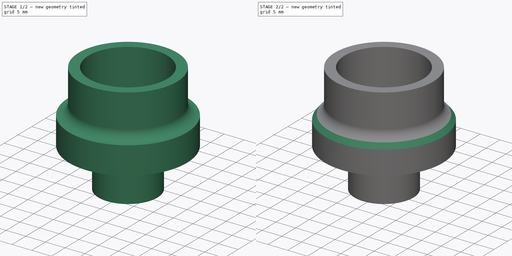
[diagram: build sequence overview — one tinted view per stage of 2, left to right]
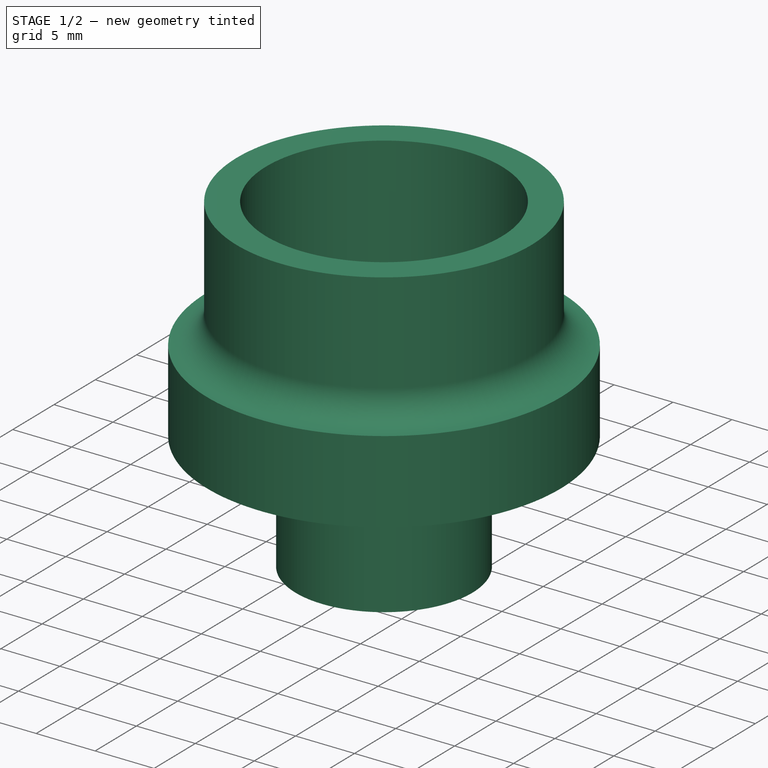
[diagram: stage 1 of 2 — iso view after this stage's code; geometry added in this stage tinted green]
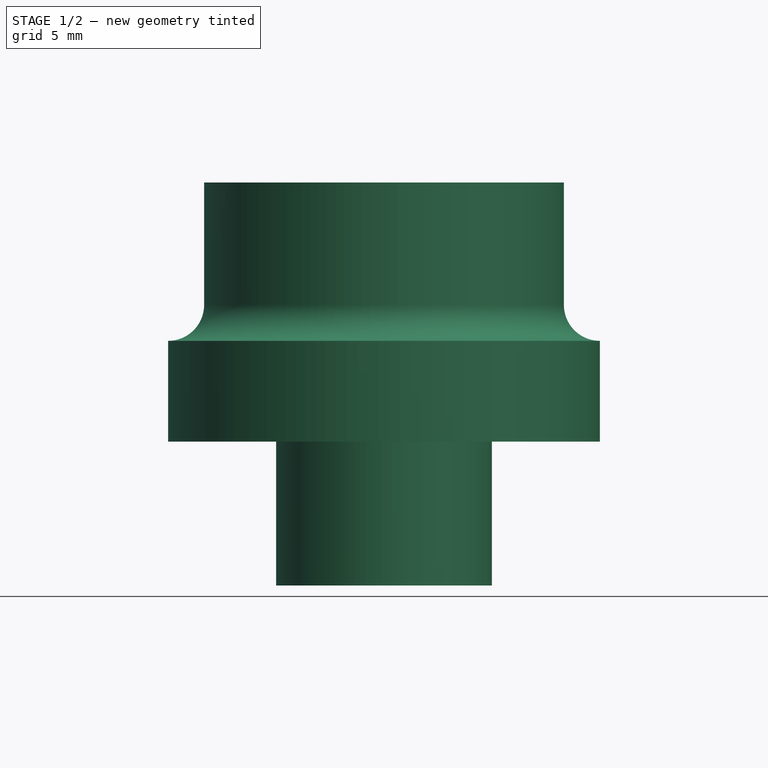
[diagram: stage 1 of 2 — front view after this stage's code; geometry added in this stage tinted green]
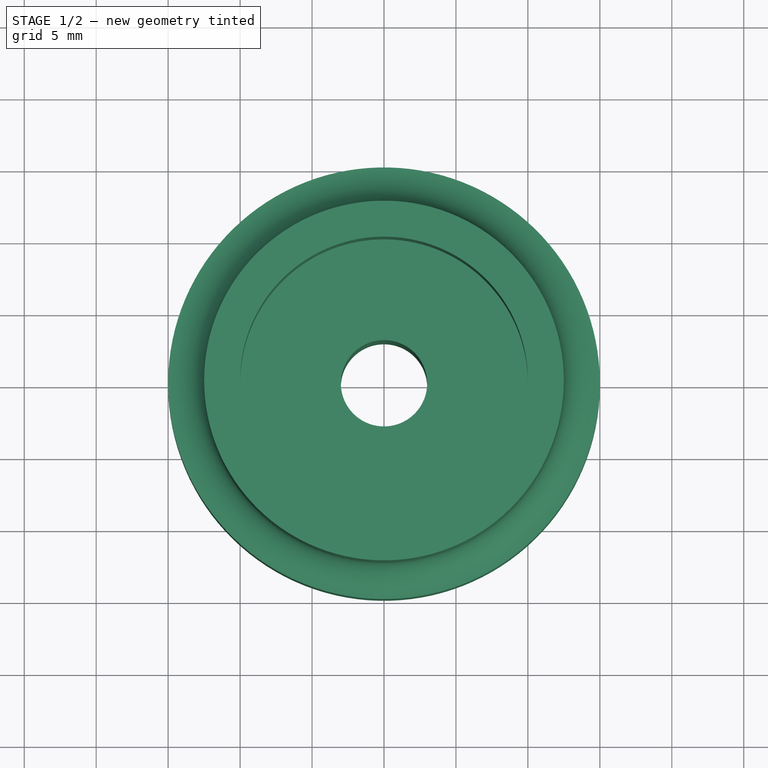
[diagram: stage 1 of 2 — top view after this stage's code; geometry added in this stage tinted green]
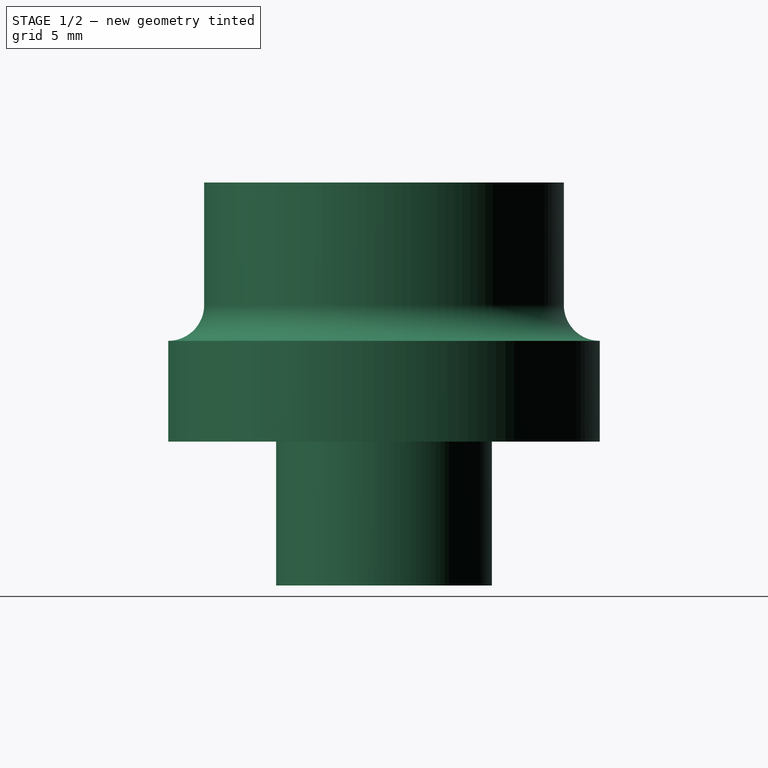
[diagram: stage 1 of 2 — right view after this stage's code; geometry added in this stage tinted green]
FCSTD DOCUMENT  (FreeCAD 1.0R39319 (Git))
Label: Entretoise
License: All rights reserved
LicenseURL: https://en.wikipedia.org/wiki/All_rights_reserved
objects: Sketcher::SketchObject×1, PartDesign::Revolution×1, PartDesign::Chamfer×1, PartDesign::Body×1
note: 9 computed .brp shape members not serialized (recipe doc carries the construction recipe); baked Part::Feature solids carry a one-line shape summary decoded from their .brp

FEATURE [Sketcher::SketchObject] Sketch
  ArcFitTolerance = 1e-06
  AttachmentSupport = -> [XZ_Plane]
  FullyConstrained = true
  MakeInternals = false
  MapMode = 5
  Placement = pos=(0,0,0) rot=(1,0,0;1.5708rad)
  sketch-geometry (10):
    g0: LineSegment StartX=3 StartY=0 StartZ=0 EndX=3 EndY=17 EndZ=0
    g1: LineSegment StartX=3 StartY=17 StartZ=0 EndX=10 EndY=17 EndZ=0
    g2: LineSegment StartX=3 StartY=0 StartZ=0 EndX=7.5 EndY=0 EndZ=0
    g3: LineSegment StartX=7.5 StartY=0 StartZ=0 EndX=7.5 EndY=10 EndZ=0
    g4: LineSegment StartX=7.5 StartY=10 StartZ=0 EndX=15 EndY=10 EndZ=0
    g5: LineSegment StartX=15 StartY=10 StartZ=0 EndX=15 EndY=17 EndZ=0
    g6: LineSegment StartX=10 StartY=17 StartZ=0 EndX=10 EndY=28 EndZ=0
    g7: LineSegment StartX=10 StartY=28 StartZ=0 EndX=12.5 EndY=28 EndZ=0
    g8: ArcOfCircle CenterX=15 CenterY=19.5 CenterZ=0 NormalX=0 NormalY=0 NormalZ=1 AngleXU=0 Radius=2.5 StartAngle=3.14159 EndAngle=4.71239
    g9: LineSegment StartX=12.5 StartY=28 StartZ=0 EndX=12.5 EndY=19.5 EndZ=0
  constraints (30):
    c: PointOnObject(g0,g-1)
    c: Vertical(g0)
    c: Coincident(g1,g0)
    c: Horizontal(g1)
    c: Coincident(g2,g0)
    c: PointOnObject(g2,g-1)
    c: Distance(g0,g-2) = 3
    c: DistanceY(g0,g0) = 17
    c: Distance(g1,g-2) = 10
    c: Distance(g2,g-2) = 7.5
    c: Coincident(g3,g2)
    c: Vertical(g3)
    c: DistanceY(g3,g3) = 10
    c: Coincident(g4,g3)
    c: Horizontal(g4)
    c: DistanceX(g-1,g4) = 15
    c: Coincident(g5,g4)
    c: Vertical(g5)
    c: DistanceY(g5,g5) = 7
    c: Coincident(g6,g1)
    c: Vertical(g6)
    c: DistanceY(g6,g6) = 11
    c: Coincident(g7,g6)
    c: Horizontal(g7)
    c: Distance(g7,g-2) = 12.5
    c: Coincident(g8,g5)
    c: Perpendicular(g8,g5)
    c: Coincident(g9,g7)
    c: Tangent(g9,g8) = -1.5708
    c: Perpendicular(g7,g9)
FEATURE [PartDesign::Revolution] Revolution
  Angle = 360
  Angle2 = 60
  Axis = (1e-16,1e-16,1)
  Base = (0,0,0)
  Placement = pos=(0,0,0) rot=(1,0,0;1.5708rad)
  Profile = -> Sketch
  ReferenceAxis = -> Z_Axis
  Refine = true
  Reversed = true
  Suppressed = false
  Type = 0
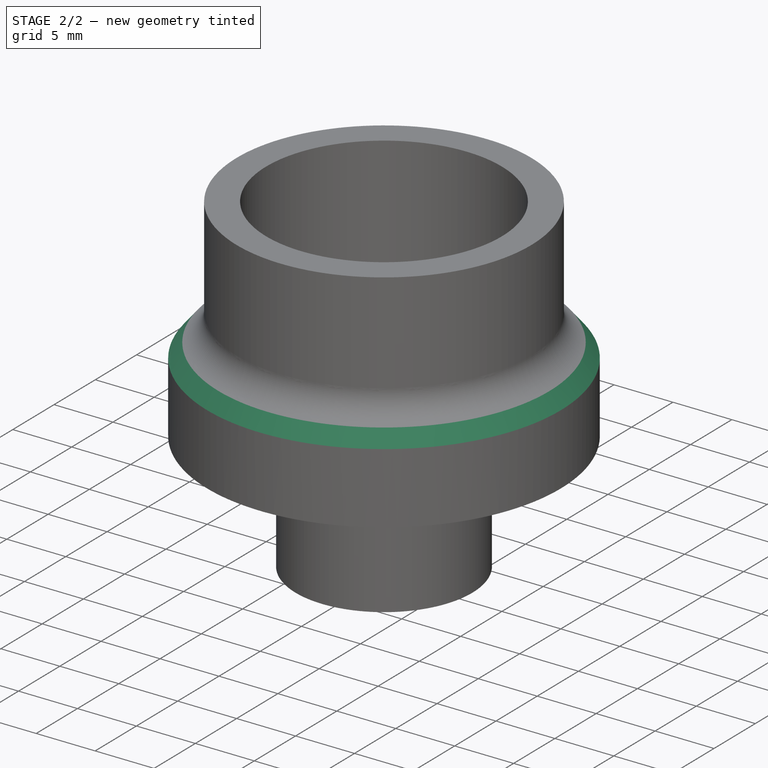
[diagram: stage 2 of 2 — iso view after this stage's code; geometry added in this stage tinted green]
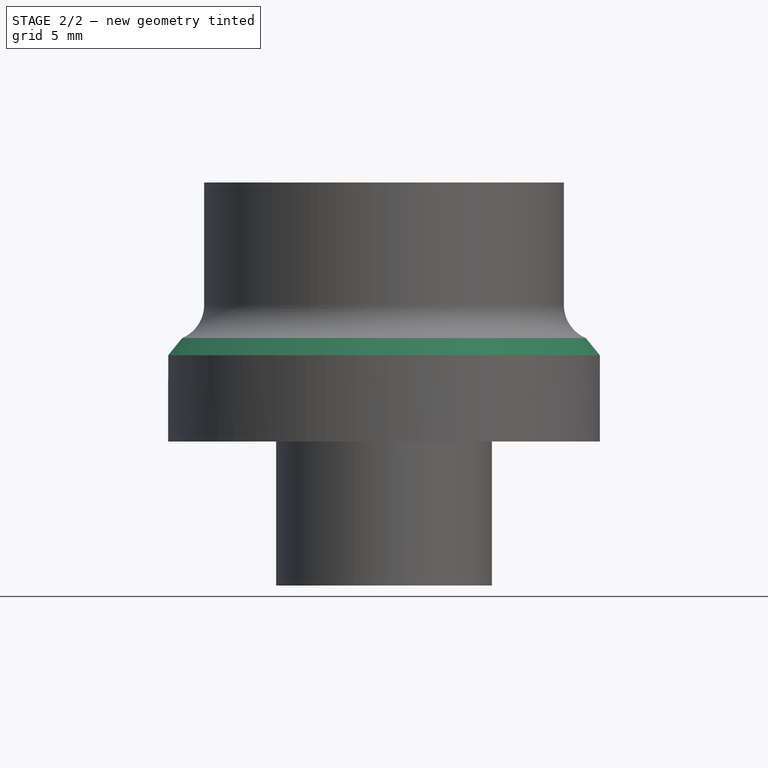
[diagram: stage 2 of 2 — front view after this stage's code; geometry added in this stage tinted green]
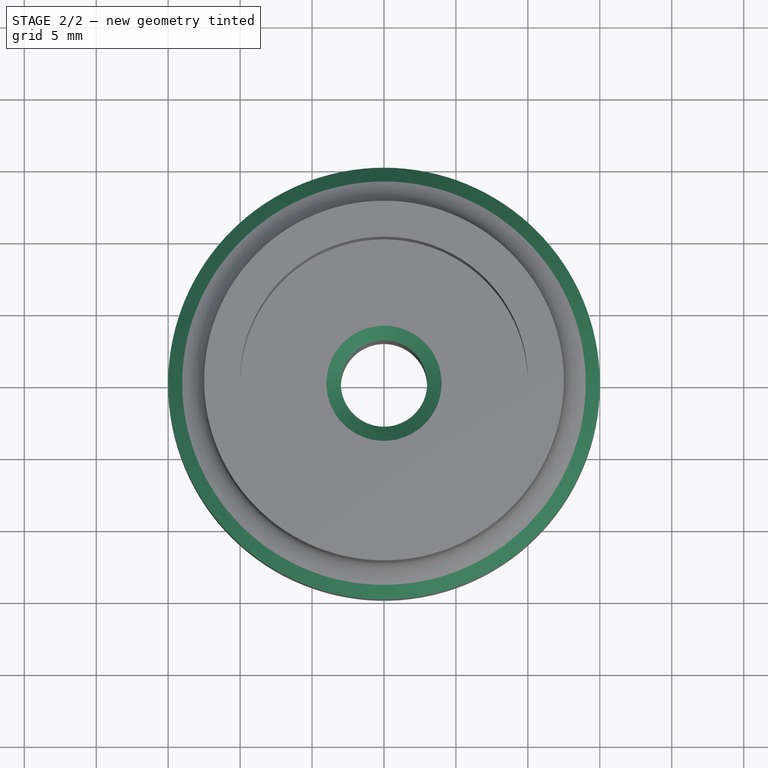
[diagram: stage 2 of 2 — top view after this stage's code; geometry added in this stage tinted green]
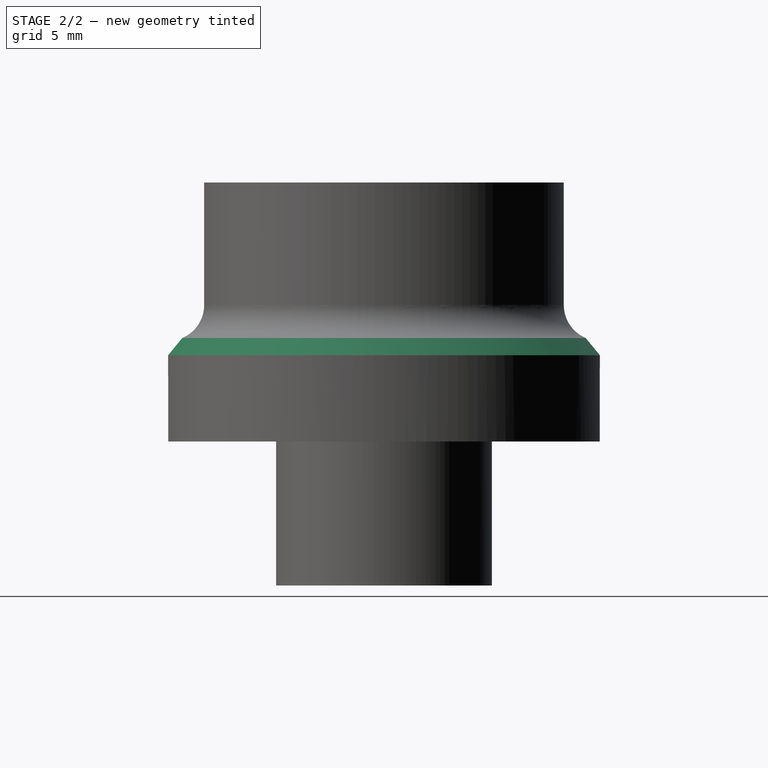
[diagram: stage 2 of 2 — right view after this stage's code; geometry added in this stage tinted green]
FEATURE [PartDesign::Chamfer] Chamfer
  Angle = 45
  Base = -> Revolution [Edge10,Edge1,Edge2]
  BaseFeature = -> Revolution
  ChamferType = 0
  FlipDirection = false
  Placement = pos=(0,0,0) rot=(1,0,0;1.5708rad)
  Refine = true
  Size = 1
  Size2 = 1
  SupportTransform = false
  Suppressed = false
  UseAllEdges = false
FEATURE [PartDesign::Body] Body  label="Corps"
  AllowCompound = false
  Group = -> [Sketch,Revolution,Chamfer]
  Origin = -> Origin
  Tip = -> Chamfer
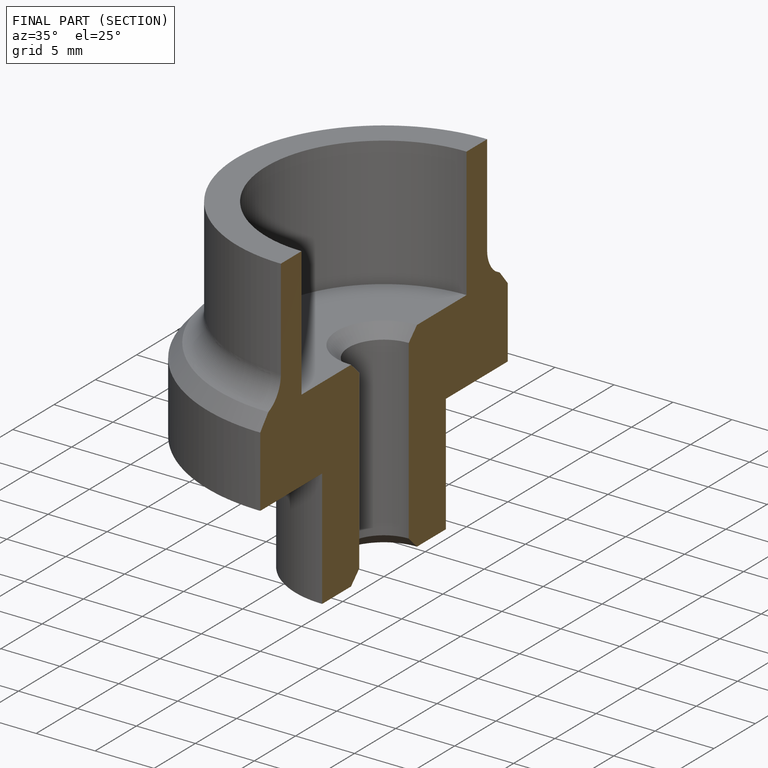
[diagram: finished part — half-section view (interior)]
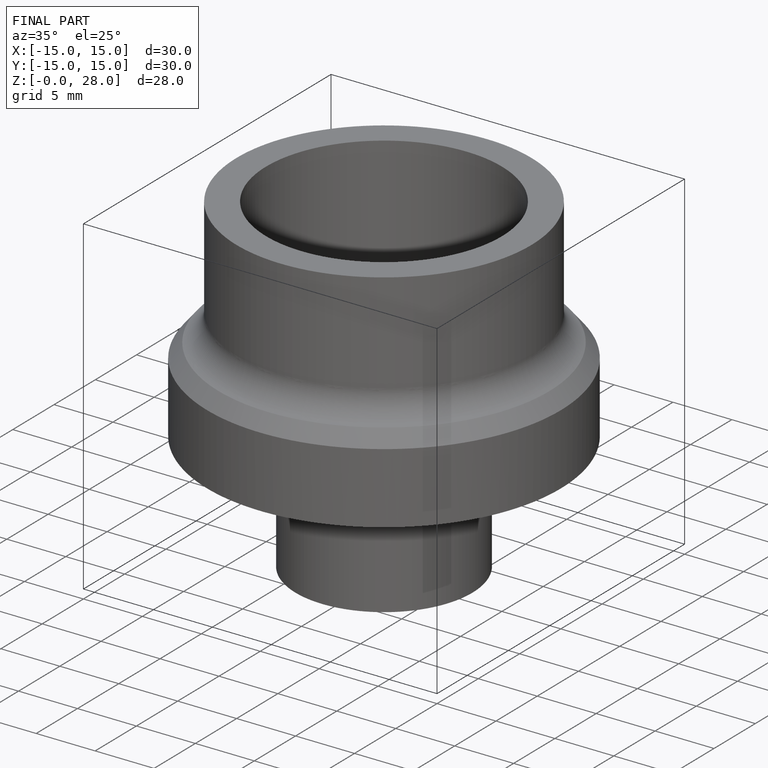
[diagram: finished part — iso view with bounding-box wireframe]
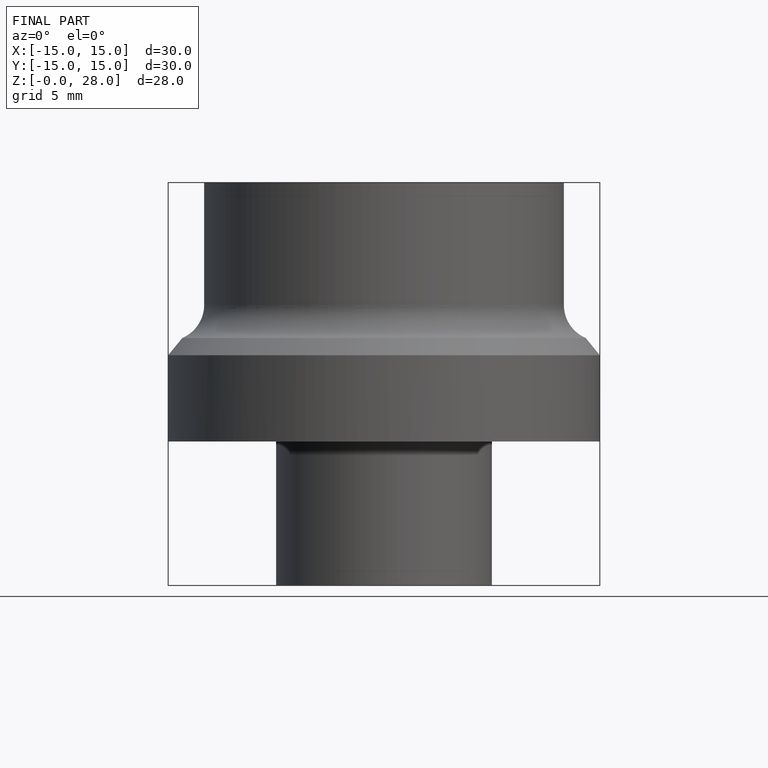
[diagram: finished part — front view with bounding-box wireframe]
